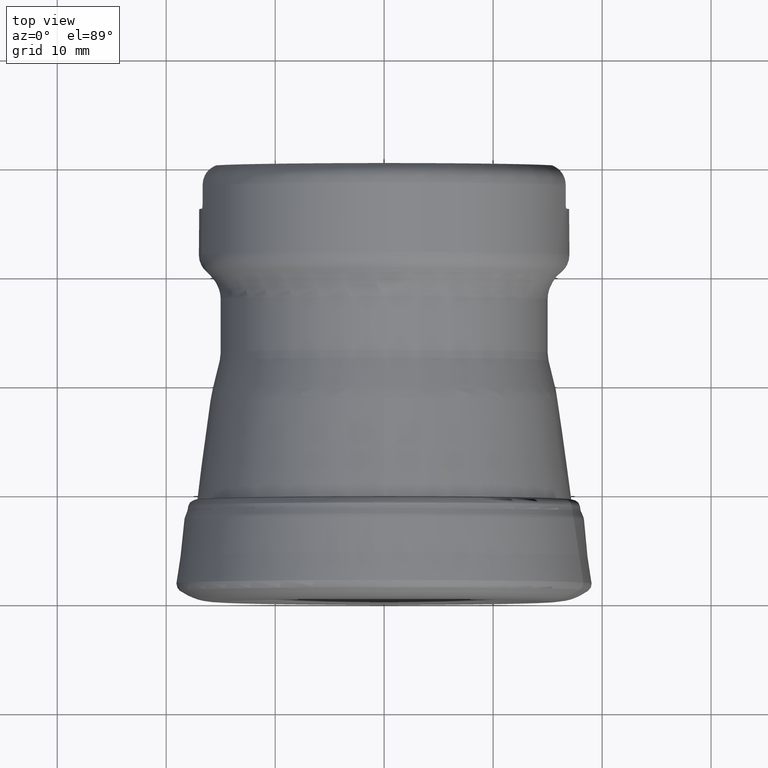
[diagram: clean part render]
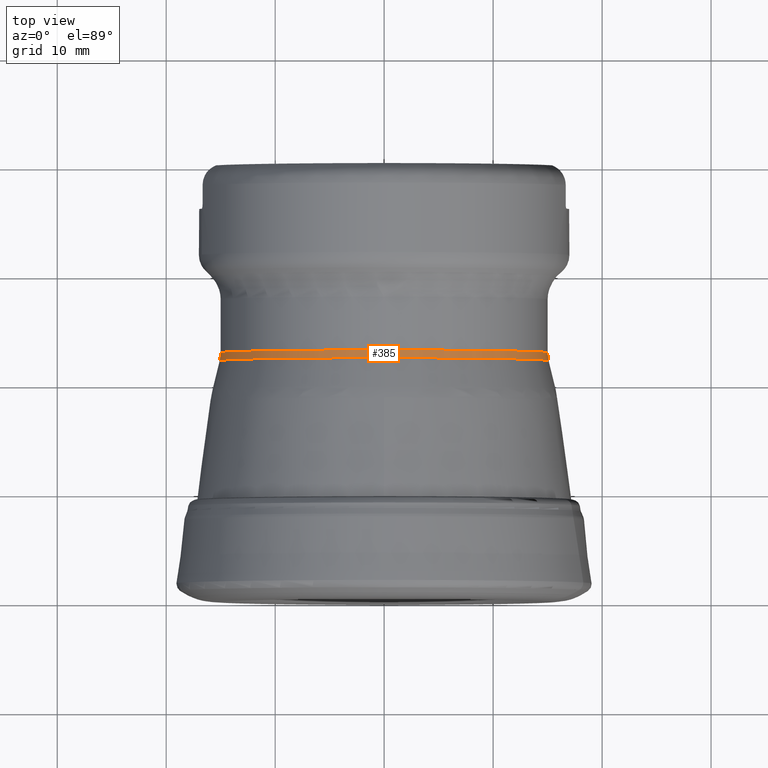
[diagram: same view with one face highlighted and labeled with its STEP entity id]
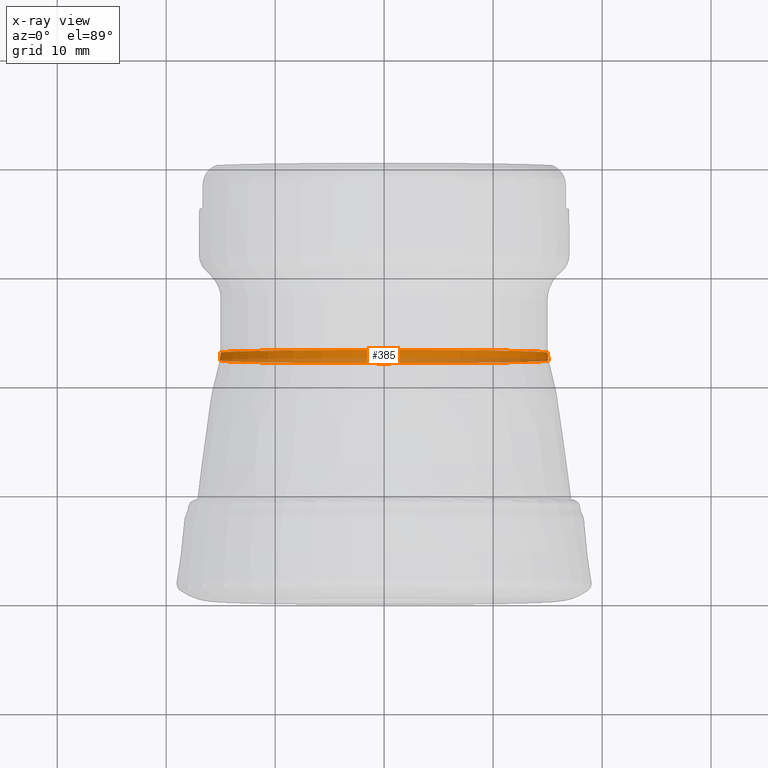
[diagram: x-ray of the same camera — body ghosted, the highlighted face saturated]
A machine part, top view. The second image highlights one B-rep face of the part: STEP entity #385.
The next image is the same camera in x-ray: the body ghosted, the highlighted face saturated — about 36% of this face is hidden behind the body in this view.
In plain terms, the highlighted toroidal blend (fillet) surface has major radius 18 mm and minor (blend) radius 3 mm.
Its self-contained STEP definition (entity closure, byte-faithful):
#186=TOROIDAL_SURFACE('',#1314,18.,3.);
#385=ADVANCED_FACE('',(#481,#482),#186,.F.);
#481=FACE_BOUND('',#615,.T.);
#482=FACE_BOUND('',#616,.T.);
#615=EDGE_LOOP('',(#829));
#616=EDGE_LOOP('',(#830));
#829=ORIENTED_EDGE('',*,*,#1074,.F.);
#830=ORIENTED_EDGE('',*,*,#1075,.F.);
#973=VERTEX_POINT('',#1778);
#974=VERTEX_POINT('',#1781);
#1074=EDGE_CURVE('',#973,#973,#1187,.T.);
#1075=EDGE_CURVE('',#974,#974,#1188,.T.);
#1187=CIRCLE('',#1263,15.0868169098697);
#1188=CIRCLE('',#1265,15.);
#1263=AXIS2_PLACEMENT_3D('',#1777,#1401,#1402);
#1265=AXIS2_PLACEMENT_3D('',#1780,#1405,#1406);
#1314=AXIS2_PLACEMENT_3D('',#2009,#1519,#1520);
#1401=DIRECTION('',(1.16234042869424E-17,-1.,0.));
#1402=DIRECTION('',(1.,0.,0.));
#1405=DIRECTION('',(-1.16234042869424E-17,1.,0.));
#1406=DIRECTION('',(-1.,0.,0.));
#1519=DIRECTION('',(-1.16234042869424E-17,1.,0.));
#1520=DIRECTION('',(-1.,0.,0.));
#1777=CARTESIAN_POINT('',(-1.56651966754795E-15,22.1520125384842,0.));
#1778=CARTESIAN_POINT('',(15.0868169098697,22.1520125384842,0.));
#1780=CARTESIAN_POINT('',(-1.57484777210013E-15,22.8685069790618,0.));
#1781=CARTESIAN_POINT('',(-15.,22.8685069790618,0.));
#2009=CARTESIAN_POINT('',(-1.57484777210013E-15,22.8685069790618,0.));